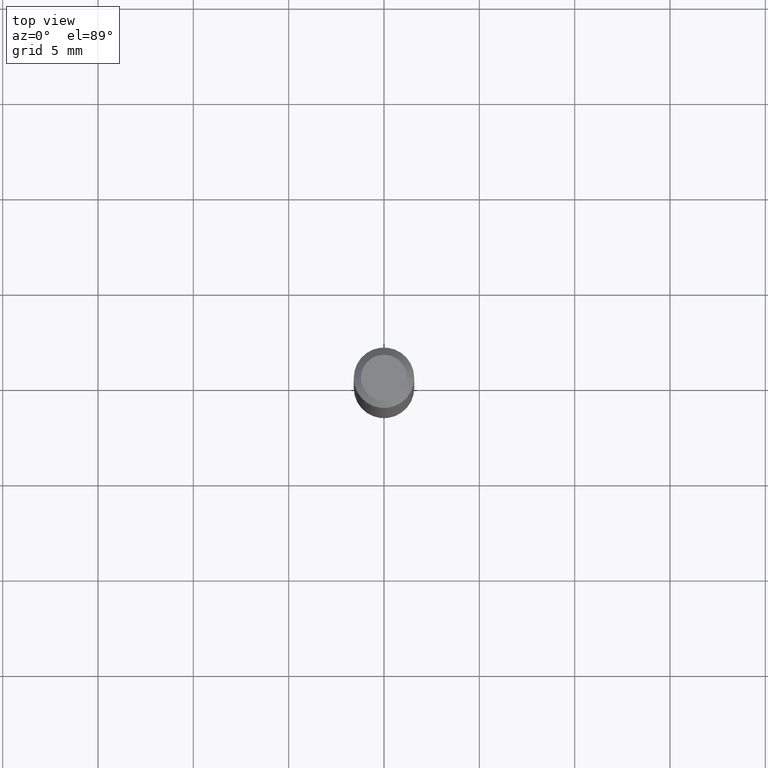
[diagram: clean part render]
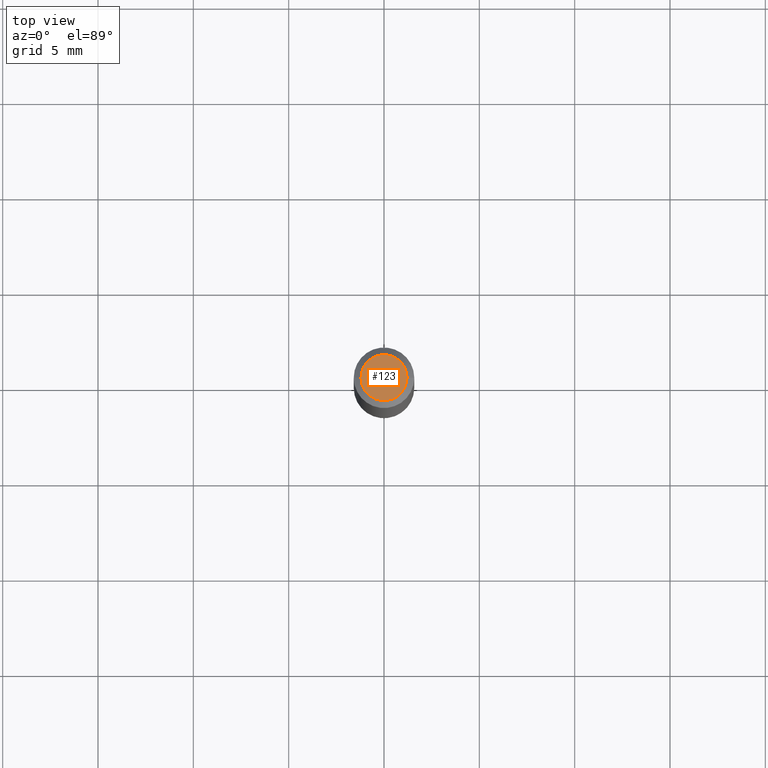
[diagram: same view with one face highlighted and labeled with its STEP entity id]
A machine part, top view. The second image highlights one B-rep face of the part: STEP entity #123.
In plain terms, the highlighted planar face has unit normal (0, -0, -1).
Its self-contained STEP definition (entity closure, byte-faithful):
#54 = CARTESIAN_POINT ( 'NONE',  ( 1.278896122067429216E-44, -1.825924719719875646E-30, -5.229656247639779395E-16 ) ) ;
#64 = EDGE_LOOP ( 'NONE', ( #365, #352 ) ) ;
#79 = FACE_OUTER_BOUND ( 'NONE', #64, .T. ) ;
#83 = DIRECTION ( 'NONE',  ( 1.000000000000000000, -6.982962677686267499E-15, 4.852736867747366768E-29 ) ) ;
#107 = CARTESIAN_POINT ( 'NONE',  ( 3.316907271900976096E-16, 0.04749999999999999362, -4.273281759770383169E-16 ) ) ;
#110 = VERTEX_POINT ( 'NONE', #401 ) ;
#118 = DIRECTION ( 'NONE',  ( -1.000000000000000000, 6.982962677686265922E-15, -4.876176775795935793E-29 ) ) ;
#123 = ADVANCED_FACE ( 'NONE', ( #79 ), #283, .F. ) ;
#150 = CIRCLE ( 'NONE', #315, 0.04749999999999999362 ) ;
#156 = CIRCLE ( 'NONE', #325, 0.04749999999999999362 ) ;
#199 = AXIS2_PLACEMENT_3D ( 'NONE', #107, #328, #118 ) ;
#203 = EDGE_CURVE ( 'NONE', #224, #110, #156, .T. ) ;
#224 = VERTEX_POINT ( 'NONE', #443 ) ;
#230 = EDGE_CURVE ( 'NONE', #110, #224, #150, .T. ) ;
#283 = PLANE ( 'NONE',  #199 ) ;
#298 = DIRECTION ( 'NONE',  ( 1.000000000000000000, -6.982962677686267499E-15, 4.852736867747366768E-29 ) ) ;
#299 = CARTESIAN_POINT ( 'NONE',  ( 1.278896122067429216E-44, -1.825924719719875646E-30, -5.229656247639779395E-16 ) ) ;
#315 = AXIS2_PLACEMENT_3D ( 'NONE', #299, #371, #298 ) ;
#325 = AXIS2_PLACEMENT_3D ( 'NONE', #54, #337, #83 ) ;
#328 = DIRECTION ( 'NONE',  ( 2.438088387897960049E-29, -3.491481338843145188E-15, -1.000000000000000000 ) ) ;
#337 = DIRECTION ( 'NONE',  ( -2.445468806185136597E-29, 3.491481338843145583E-15, 1.000000000000000000 ) ) ;
#352 = ORIENTED_EDGE ( 'NONE', *, *, #203, .T. ) ;
#365 = ORIENTED_EDGE ( 'NONE', *, *, #230, .T. ) ;
#371 = DIRECTION ( 'NONE',  ( -2.445468806185136597E-29, 3.491481338843145583E-15, 1.000000000000000000 ) ) ;
#401 = CARTESIAN_POINT ( 'NONE',  ( -0.04749999999999999362, 3.578768372314202124E-16, -5.229656247639803061E-16 ) ) ;
#443 = CARTESIAN_POINT ( 'NONE',  ( 0.04749999999999999362, -4.035134999187587991E-16, -5.229656247639753758E-16 ) ) ;